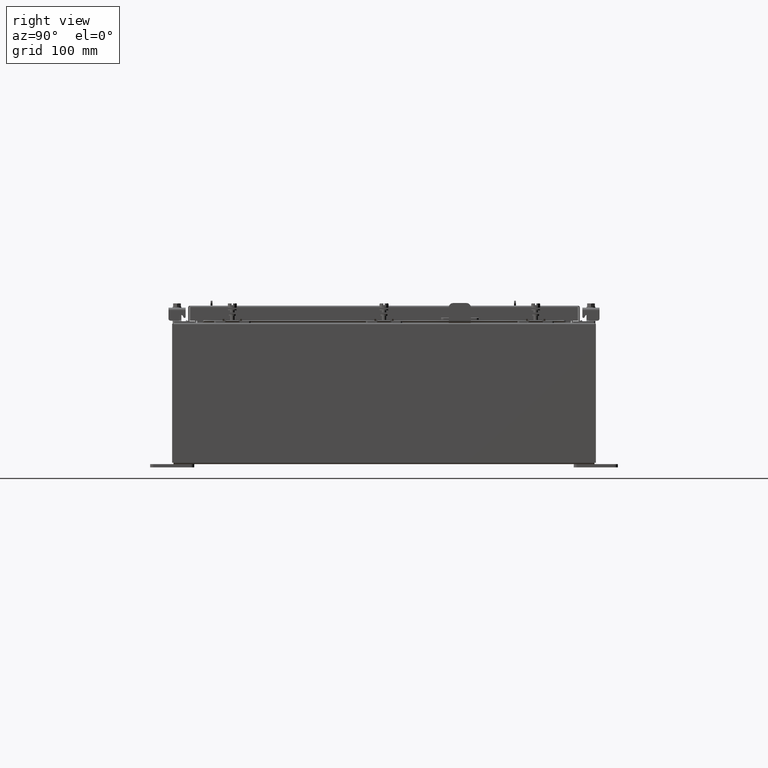
[diagram: clean part render]
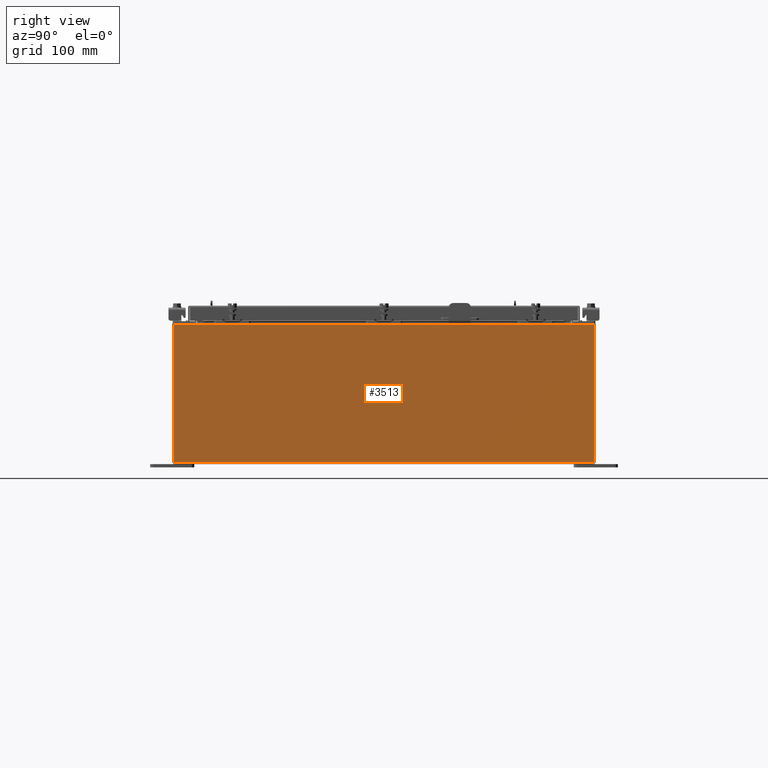
[diagram: same view with one face highlighted and labeled with its STEP entity id]
A machine part, right view. The second image highlights one B-rep face of the part: STEP entity #3513.
In plain terms, the highlighted planar face has unit normal (-1, 0, 0).
Its self-contained STEP definition (entity closure, byte-faithful):
#822 = DIRECTION ( 'NONE',  ( 3.584876173029202900E-015, 0.0000000000000000000, 1.000000000000000000 ) ) ;
#1486 = EDGE_CURVE ( 'NONE', #9756, #16789, #19712, .T. ) ;
#1505 = EDGE_CURVE ( 'NONE', #17404, #9756, #10413, .T. ) ;
#1586 = DIRECTION ( 'NONE',  ( 3.584876173029202900E-015, 0.0000000000000000000, 1.000000000000000000 ) ) ;
#2116 = CARTESIAN_POINT ( 'NONE',  ( 15.00000000000000000, -11.92530000000000400, -5.403395625144962700E-014 ) ) ;
#3513 = ADVANCED_FACE ( 'NONE', ( #5446 ), #12878, .F. ) ;
#4889 = EDGE_CURVE ( 'NONE', #17404, #22601, #13820, .T. ) ;
#5446 = FACE_OUTER_BOUND ( 'NONE', #16351, .T. ) ;
#5812 = ORIENTED_EDGE ( 'NONE', *, *, #1505, .T. ) ;
#6731 = CARTESIAN_POINT ( 'NONE',  ( 15.00000000000003200, 11.92529999999999600, 7.837599999999992100 ) ) ;
#6855 = ORIENTED_EDGE ( 'NONE', *, *, #4889, .F. ) ;
#6859 = CARTESIAN_POINT ( 'NONE',  ( 15.00000000000000000, -11.92530000000000400, 0.01299999999999983600 ) ) ;
#7395 = DIRECTION ( 'NONE',  ( -3.584876173029202900E-015, 0.0000000000000000000, -1.000000000000000000 ) ) ;
#9756 = VERTEX_POINT ( 'NONE', #6731 ) ;
#10413 = LINE ( 'NONE', #21364, #19165 ) ;
#10957 = VECTOR ( 'NONE', #15507, 39.37007874015748100 ) ;
#11285 = DIRECTION ( 'NONE',  ( -1.000000000000000000, 0.0000000000000000000, 3.584876173029202900E-015 ) ) ;
#12878 = PLANE ( 'NONE',  #20098 ) ;
#13820 = LINE ( 'NONE', #20697, #14359 ) ;
#14359 = VECTOR ( 'NONE', #17159, 39.37007874015748100 ) ;
#15436 = CARTESIAN_POINT ( 'NONE',  ( 15.00000000000003200, 11.92529999999999800, 7.837599999999992100 ) ) ;
#15507 = DIRECTION ( 'NONE',  ( -0.0000000000000000000, -1.000000000000000000, -0.0000000000000000000 ) ) ;
#16351 = EDGE_LOOP ( 'NONE', ( #16966, #18380, #6855, #5812 ) ) ;
#16789 = VERTEX_POINT ( 'NONE', #20299 ) ;
#16966 = ORIENTED_EDGE ( 'NONE', *, *, #1486, .T. ) ;
#17140 = VECTOR ( 'NONE', #7395, 39.37007874015748100 ) ;
#17159 = DIRECTION ( 'NONE',  ( -0.0000000000000000000, -1.000000000000000000, -0.0000000000000000000 ) ) ;
#17404 = VERTEX_POINT ( 'NONE', #20111 ) ;
#18250 = CARTESIAN_POINT ( 'NONE',  ( 15.00000000000000000, 0.0000000000000000000, -5.403395625144962700E-014 ) ) ;
#18380 = ORIENTED_EDGE ( 'NONE', *, *, #19261, .T. ) ;
#19165 = VECTOR ( 'NONE', #1586, 39.37007874015748100 ) ;
#19261 = EDGE_CURVE ( 'NONE', #16789, #22601, #21781, .T. ) ;
#19712 = LINE ( 'NONE', #15436, #10957 ) ;
#20098 = AXIS2_PLACEMENT_3D ( 'NONE', #18250, #11285, #822 ) ;
#20111 = CARTESIAN_POINT ( 'NONE',  ( 15.00000000000000000, 11.92529999999999600, 0.01299999999999984700 ) ) ;
#20299 = CARTESIAN_POINT ( 'NONE',  ( 15.00000000000002800, -11.92530000000000400, 7.837599999999998300 ) ) ;
#20697 = CARTESIAN_POINT ( 'NONE',  ( 15.00000000000000000, -11.92530000000000400, 0.01299999999999984700 ) ) ;
#21364 = CARTESIAN_POINT ( 'NONE',  ( 15.00000000000000000, 11.92529999999999800, -5.403395625144962700E-014 ) ) ;
#21781 = LINE ( 'NONE', #2116, #17140 ) ;
#22601 = VERTEX_POINT ( 'NONE', #6859 ) ;